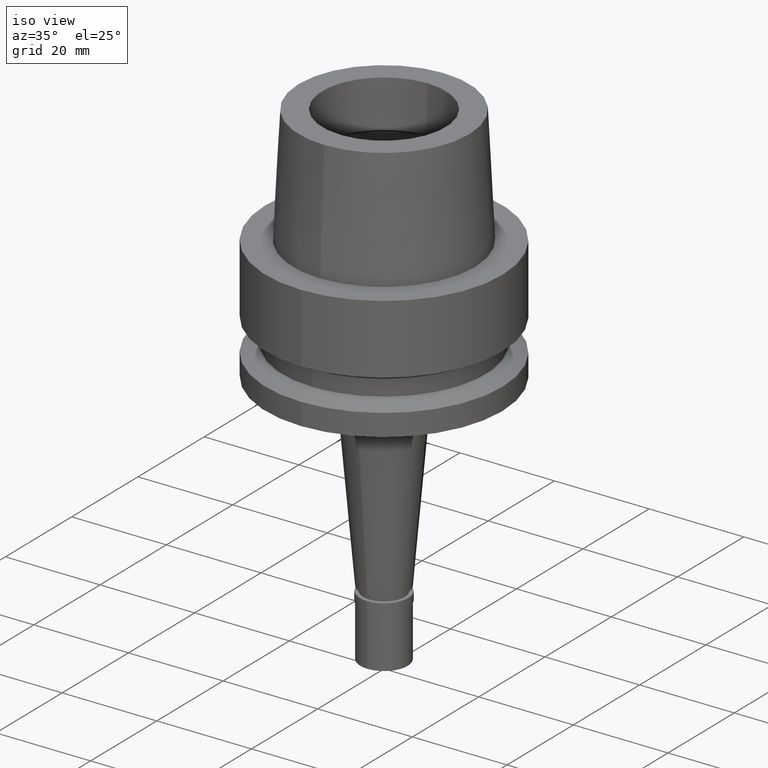
[diagram: clean part render]
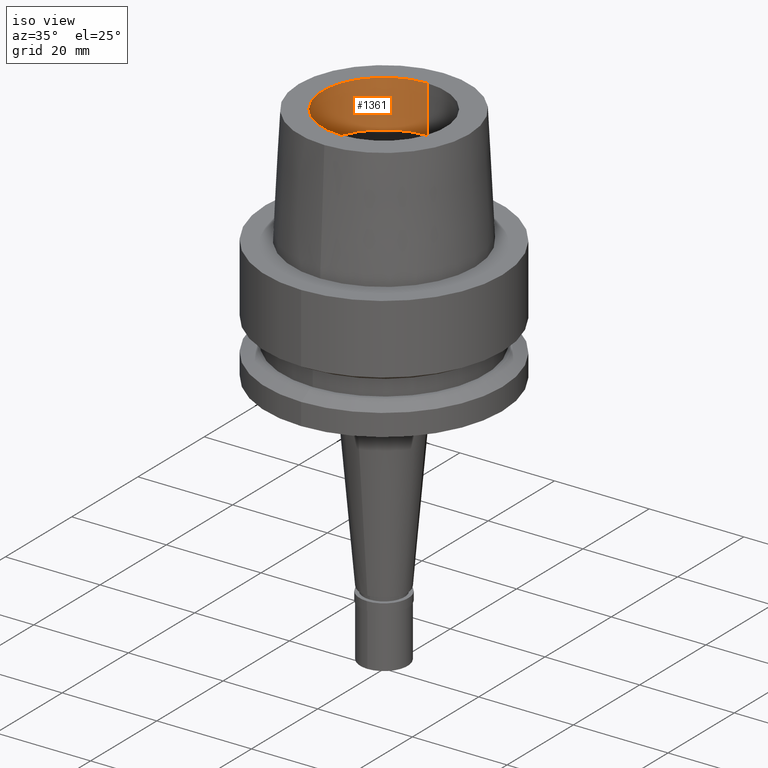
[diagram: same view with one face highlighted and labeled with its STEP entity id]
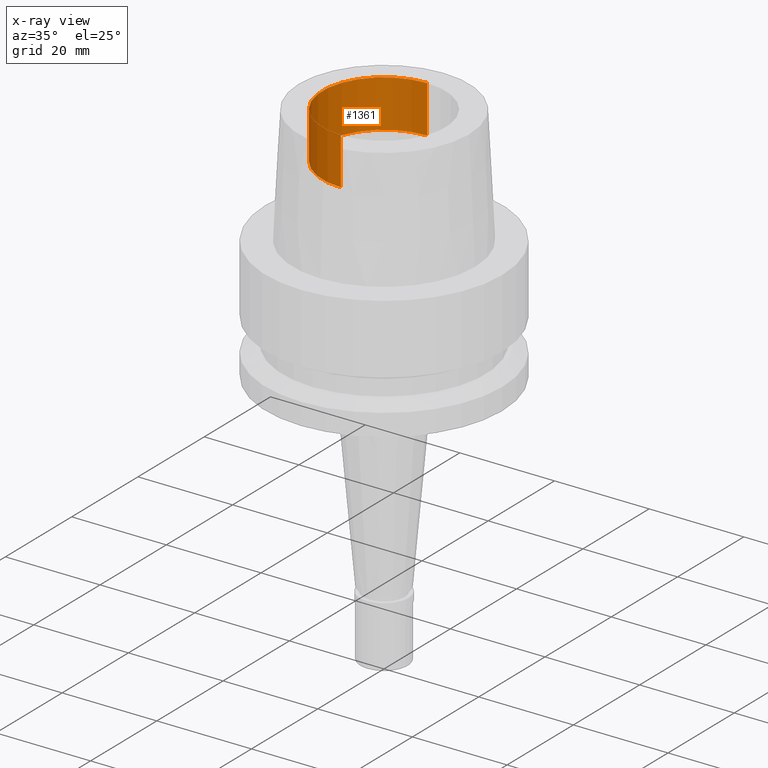
[diagram: x-ray of the same camera — body ghosted, the highlighted face saturated]
A machine part, iso view. The second image highlights one B-rep face of the part: STEP entity #1361.
The next image is the same camera in x-ray: the body ghosted, the highlighted face saturated — about 0% of this face is hidden behind the body in this view.
In plain terms, the highlighted cylindrical surface (partial cylindrical patch) has radius 13 mm, axis along (0, 0, -1).
Its self-contained STEP definition (entity closure, byte-faithful):
#128 = CYLINDRICAL_SURFACE ( 'NONE', #1621, 13.00000000000000000 ) ;
#350 = EDGE_LOOP ( 'NONE', ( #1822, #1960, #835, #894 ) ) ;
#403 = AXIS2_PLACEMENT_3D ( 'NONE', #736, #1156, #1045 ) ;
#440 = CARTESIAN_POINT ( 'NONE',  ( 0.0000000000000000000, 13.00000000000000000, 25.00000000000000000 ) ) ;
#478 = EDGE_CURVE ( 'NONE', #2540, #497, #728, .T. ) ;
#497 = VERTEX_POINT ( 'NONE', #667 ) ;
#566 = DIRECTION ( 'NONE',  ( 0.0000000000000000000, 0.0000000000000000000, -1.000000000000000000 ) ) ;
#652 = CARTESIAN_POINT ( 'NONE',  ( 0.0000000000000000000, 13.00000000000000000, 14.99602540378000093 ) ) ;
#667 = CARTESIAN_POINT ( 'NONE',  ( 0.0000000000000000000, -13.00000000000000000, 25.00000000000000000 ) ) ;
#680 = EDGE_CURVE ( 'NONE', #1308, #1908, #2537, .T. ) ;
#728 = LINE ( 'NONE', #2149, #2674 ) ;
#736 = CARTESIAN_POINT ( 'NONE',  ( 0.0000000000000000000, 0.0000000000000000000, 14.99602540378000093 ) ) ;
#835 = ORIENTED_EDGE ( 'NONE', *, *, #2141, .T. ) ;
#894 = ORIENTED_EDGE ( 'NONE', *, *, #680, .T. ) ;
#898 = CARTESIAN_POINT ( 'NONE',  ( 0.0000000000000000000, 13.00000000000000000, 14.99602540378000093 ) ) ;
#1045 = DIRECTION ( 'NONE',  ( 0.0000000000000000000, -1.000000000000000000, 0.0000000000000000000 ) ) ;
#1156 = DIRECTION ( 'NONE',  ( 0.0000000000000000000, 0.0000000000000000000, -1.000000000000000000 ) ) ;
#1168 = CARTESIAN_POINT ( 'NONE',  ( 0.0000000000000000000, -13.00000000000000000, 14.99602540378000093 ) ) ;
#1200 = AXIS2_PLACEMENT_3D ( 'NONE', #1217, #1230, #2037 ) ;
#1217 = CARTESIAN_POINT ( 'NONE',  ( 0.0000000000000000000, 0.0000000000000000000, 25.00000000000000000 ) ) ;
#1230 = DIRECTION ( 'NONE',  ( 0.0000000000000000000, 0.0000000000000000000, 1.000000000000000000 ) ) ;
#1308 = VERTEX_POINT ( 'NONE', #898 ) ;
#1361 = ADVANCED_FACE ( 'NONE', ( #1589 ), #128, .F. ) ;
#1393 = DIRECTION ( 'NONE',  ( 0.0000000000000000000, -1.000000000000000000, 0.0000000000000000000 ) ) ;
#1456 = VECTOR ( 'NONE', #1901, 1000.000000000000000 ) ;
#1579 = CIRCLE ( 'NONE', #403, 13.00000000000000000 ) ;
#1589 = FACE_OUTER_BOUND ( 'NONE', #350, .T. ) ;
#1621 = AXIS2_PLACEMENT_3D ( 'NONE', #1794, #566, #1393 ) ;
#1794 = CARTESIAN_POINT ( 'NONE',  ( 0.0000000000000000000, 0.0000000000000000000, 30.06500000000000128 ) ) ;
#1822 = ORIENTED_EDGE ( 'NONE', *, *, #2328, .T. ) ;
#1901 = DIRECTION ( 'NONE',  ( 0.0000000000000000000, -9.659541928455000240E-14, 1.000000000000000000 ) ) ;
#1908 = VERTEX_POINT ( 'NONE', #440 ) ;
#1960 = ORIENTED_EDGE ( 'NONE', *, *, #478, .F. ) ;
#2037 = DIRECTION ( 'NONE',  ( 0.0000000000000000000, 1.000000000000000000, 0.0000000000000000000 ) ) ;
#2141 = EDGE_CURVE ( 'NONE', #2540, #1308, #1579, .T. ) ;
#2149 = CARTESIAN_POINT ( 'NONE',  ( 0.0000000000000000000, -13.00000000000000000, 14.99602540378000093 ) ) ;
#2187 = CIRCLE ( 'NONE', #1200, 13.00000000000000000 ) ;
#2328 = EDGE_CURVE ( 'NONE', #1908, #497, #2187, .T. ) ;
#2537 = LINE ( 'NONE', #652, #1456 ) ;
#2540 = VERTEX_POINT ( 'NONE', #1168 ) ;
#2555 = DIRECTION ( 'NONE',  ( 0.0000000000000000000, 9.659541928455000240E-14, 1.000000000000000000 ) ) ;
#2674 = VECTOR ( 'NONE', #2555, 1000.000000000000000 ) ;